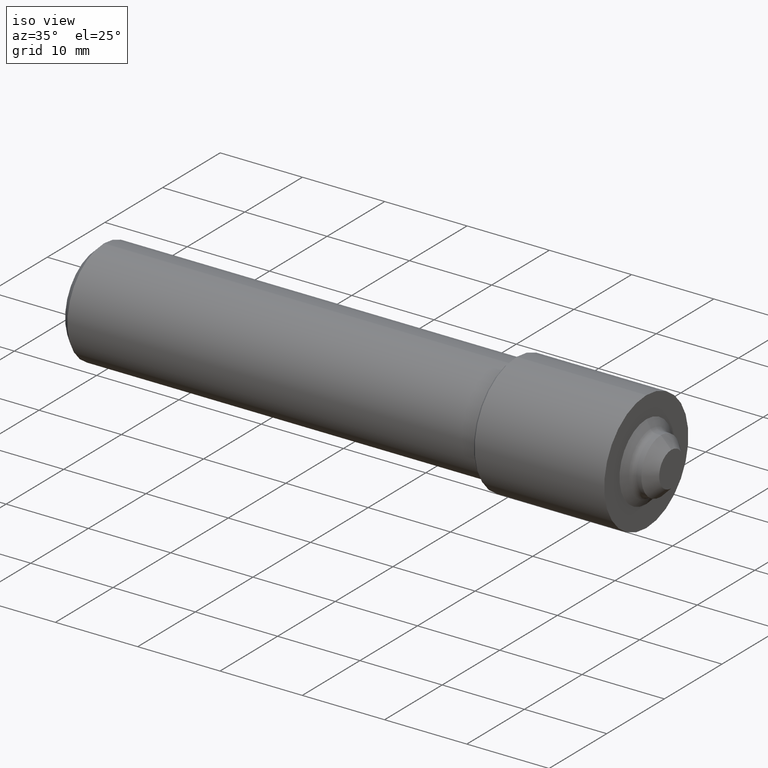
[diagram: clean part render]
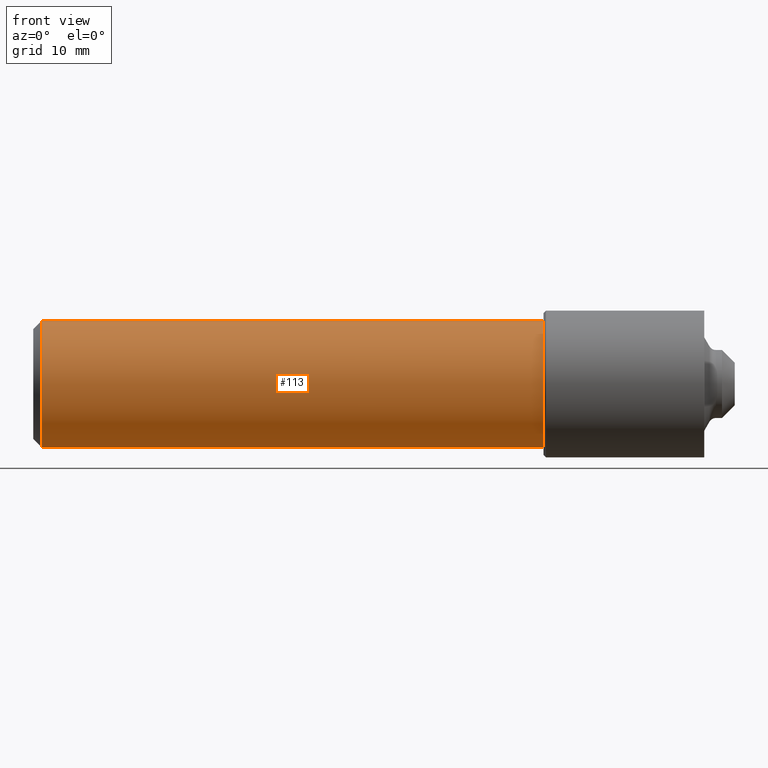
[diagram: tour spotlight — one face highlighted and labeled with its STEP entity id]
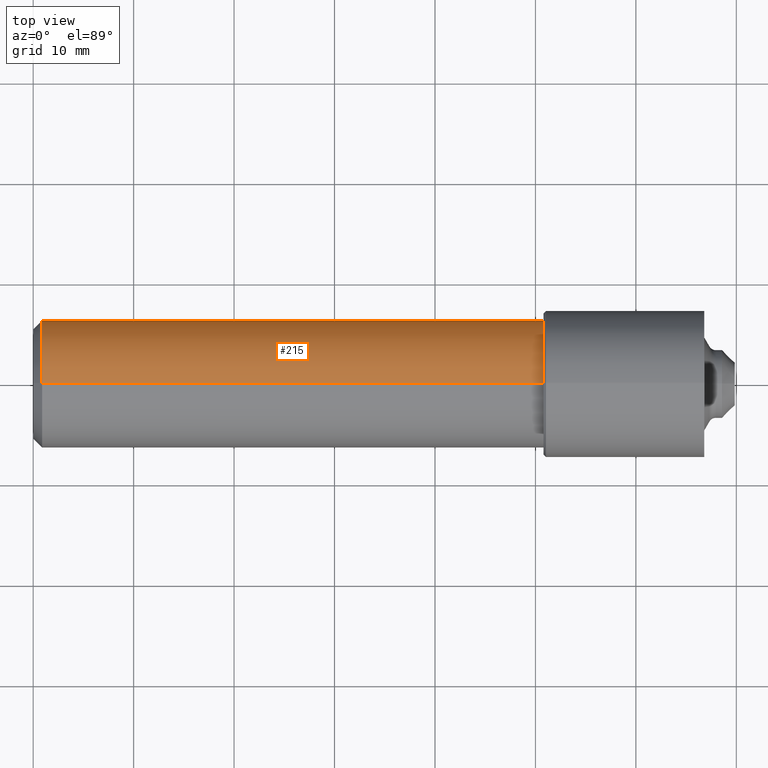
[diagram: tour spotlight — one face highlighted and labeled with its STEP entity id]
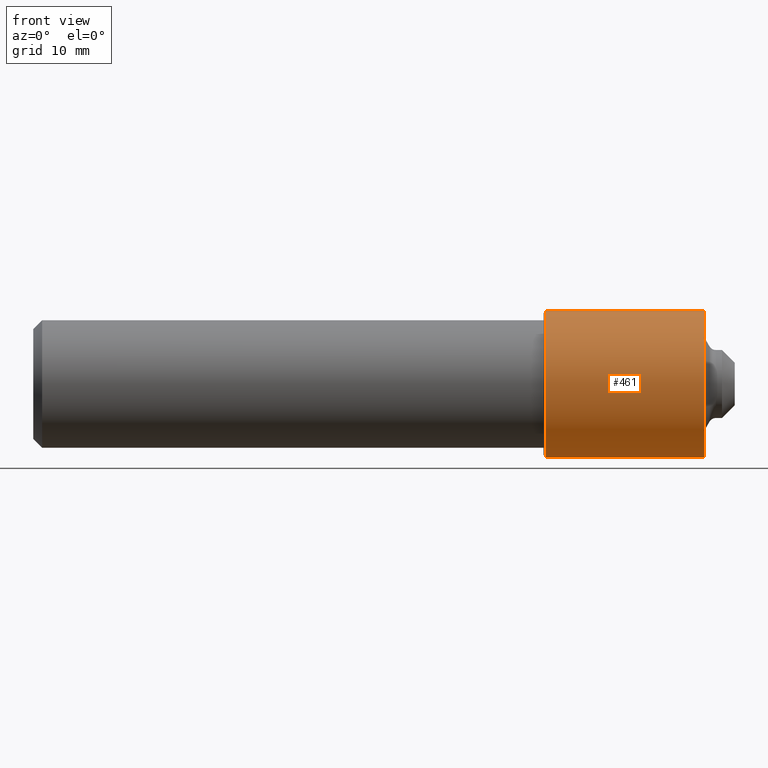
[diagram: tour spotlight — one face highlighted and labeled with its STEP entity id]
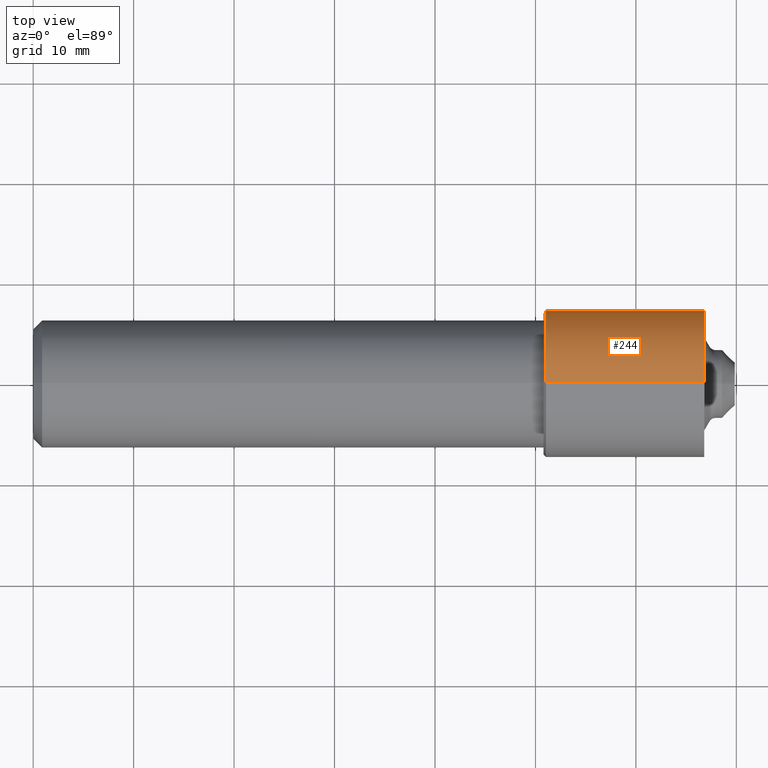
[diagram: tour spotlight — one face highlighted and labeled with its STEP entity id]
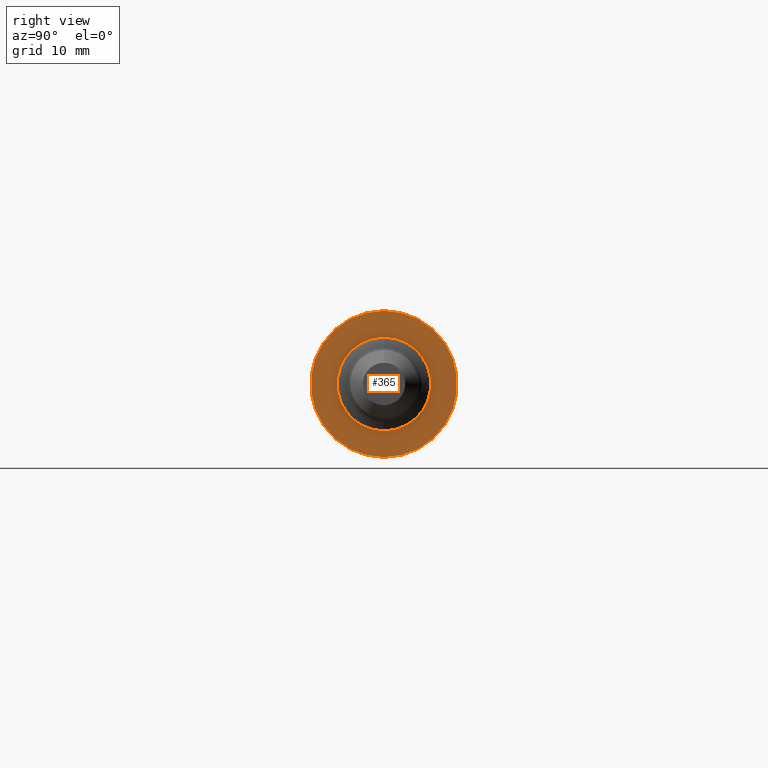
[diagram: tour spotlight — one face highlighted and labeled with its STEP entity id]
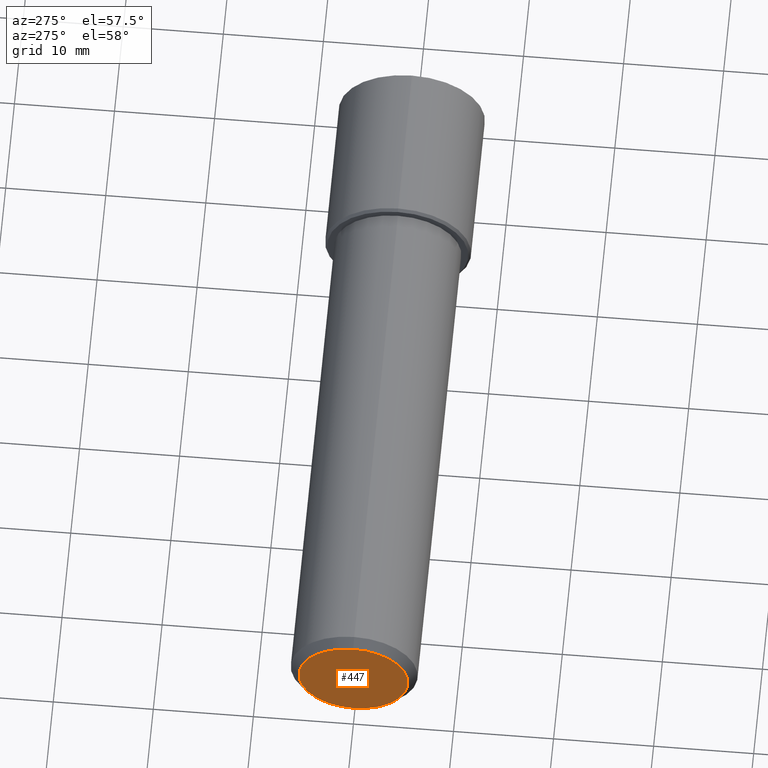
[diagram: tour spotlight — one face highlighted and labeled with its STEP entity id]
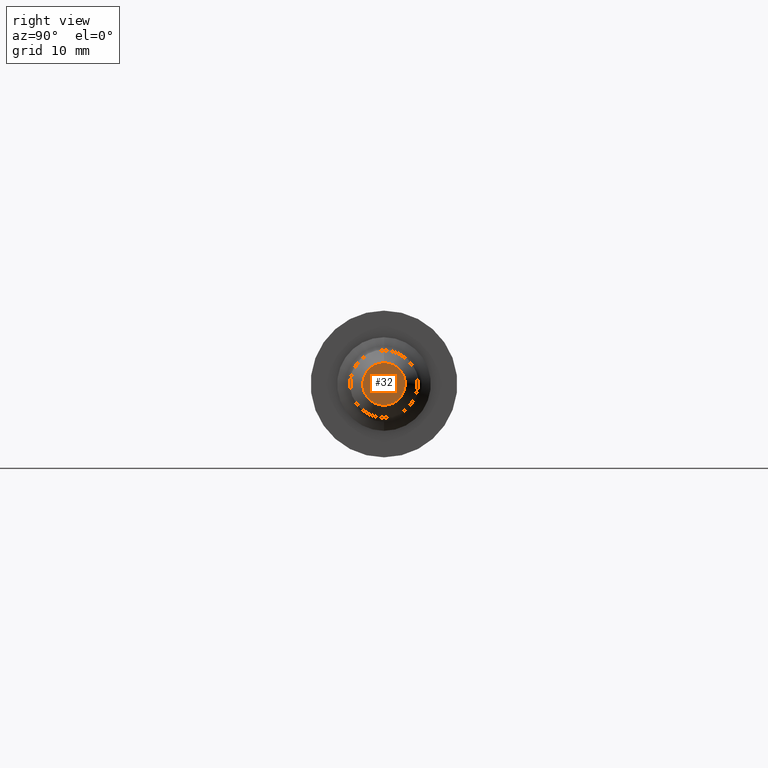
[diagram: tour spotlight — one face highlighted and labeled with its STEP entity id]
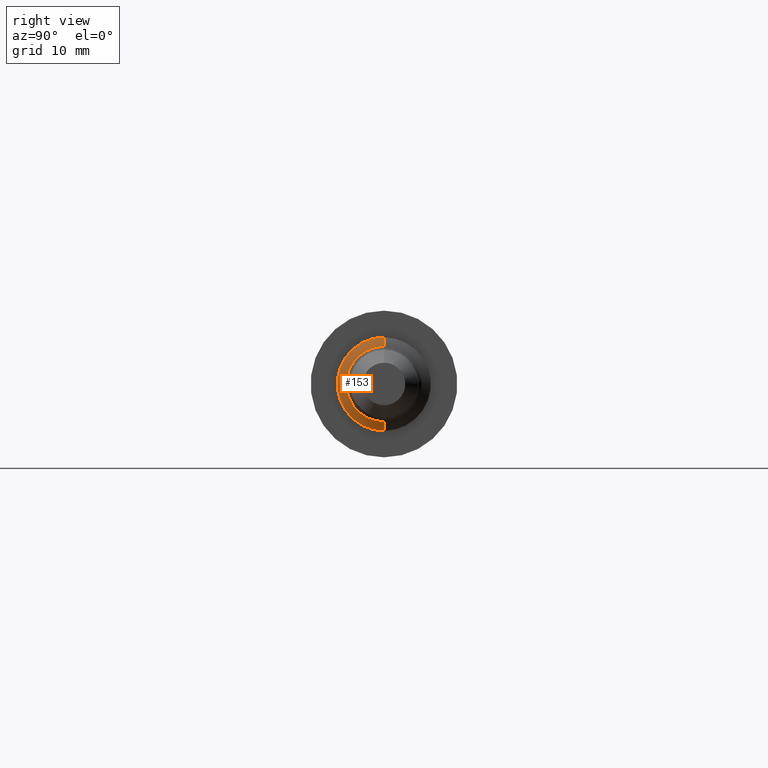
[diagram: tour spotlight — one face highlighted and labeled with its STEP entity id]
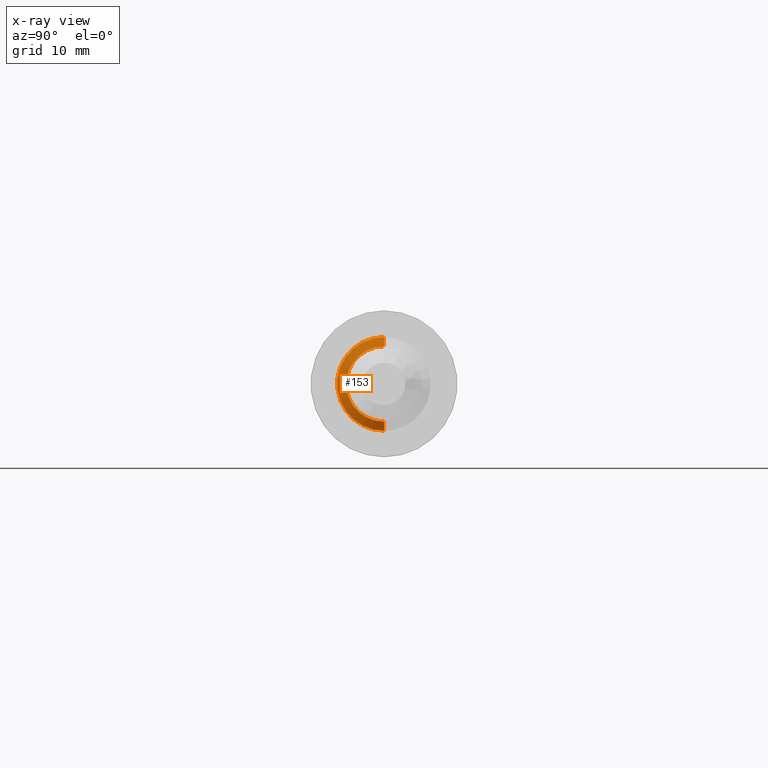
[diagram: x-ray of the same camera — body ghosted, this tour face saturated]
A machine part: a face-by-face anatomy tour. The part has 20 B-rep faces; the first image is the clean iso view, then the 8 largest visible faces are spotlighted one at a time (largest first), each with its STEP entity span.

Face 1 — front view, entity #113. In plain terms, the highlighted cylindrical surface (partial cylindrical patch) has radius 6.35 mm, axis along (-1, -0, -0).
Definition (entity closure, byte-faithful):
#1 = FACE_OUTER_BOUND ( 'NONE', #417, .T. ) ;
#21 = DIRECTION ( 'NONE',  ( -1.000000000000000000, -0.000000000000000000, -0.000000000000000000 ) ) ;
#24 = EDGE_CURVE ( 'NONE', #486, #97, #380, .T. ) ;
#33 = ORIENTED_EDGE ( 'NONE', *, *, #143, .T. ) ;
#40 = CARTESIAN_POINT ( 'NONE',  ( 2.000000000000000000, 3.061616997868383018E-17, -0.2500000000000000000 ) ) ;
#77 = CARTESIAN_POINT ( 'NONE',  ( 0.000000000000000000, 0.000000000000000000, 0.2500000000000000000 ) ) ;
#88 = AXIS2_PLACEMENT_3D ( 'NONE', #261, #21, #160 ) ;
#97 = VERTEX_POINT ( 'NONE', #164 ) ;
#113 = ADVANCED_FACE ( 'NONE', ( #1 ), #520, .T. ) ;
#119 = DIRECTION ( 'NONE',  ( -1.000000000000000000, -0.000000000000000000, -0.000000000000000000 ) ) ;
#134 = DIRECTION ( 'NONE',  ( -1.000000000000000000, -0.000000000000000000, -0.000000000000000000 ) ) ;
#142 = VERTEX_POINT ( 'NONE', #411 ) ;
#143 = EDGE_CURVE ( 'NONE', #142, #97, #504, .T. ) ;
#152 = DIRECTION ( 'NONE',  ( 0.000000000000000000, 0.000000000000000000, 1.000000000000000000 ) ) ;
#160 = DIRECTION ( 'NONE',  ( 0.000000000000000000, 0.000000000000000000, 1.000000000000000000 ) ) ;
#164 = CARTESIAN_POINT ( 'NONE',  ( 0.03500000000000000333, 0.000000000000000000, 0.2500000000000000000 ) ) ;
#167 = CARTESIAN_POINT ( 'NONE',  ( 0.000000000000000000, 0.000000000000000000, 0.000000000000000000 ) ) ;
#190 = ORIENTED_EDGE ( 'NONE', *, *, #24, .F. ) ;
#191 = EDGE_CURVE ( 'NONE', #347, #142, #326, .T. ) ;
#198 = VECTOR ( 'NONE', #119, 39.37007874015748143 ) ;
#230 = DIRECTION ( 'NONE',  ( -1.000000000000000000, -0.000000000000000000, -0.000000000000000000 ) ) ;
#261 = CARTESIAN_POINT ( 'NONE',  ( 2.000000000000000000, 0.000000000000000000, 0.000000000000000000 ) ) ;
#269 = VECTOR ( 'NONE', #230, 39.37007874015748143 ) ;
#274 = ORIENTED_EDGE ( 'NONE', *, *, #353, .F. ) ;
#308 = LINE ( 'NONE', #397, #269 ) ;
#326 = CIRCLE ( 'NONE', #88, 0.2500000000000000000 ) ;
#329 = DIRECTION ( 'NONE',  ( -1.000000000000000000, -0.000000000000000000, -0.000000000000000000 ) ) ;
#347 = VERTEX_POINT ( 'NONE', #40 ) ;
#353 = EDGE_CURVE ( 'NONE', #347, #486, #308, .T. ) ;
#364 = CARTESIAN_POINT ( 'NONE',  ( 0.03500000000000000333, 0.000000000000000000, 0.000000000000000000 ) ) ;
#380 = CIRCLE ( 'NONE', #522, 0.2500000000000000000 ) ;
#397 = CARTESIAN_POINT ( 'NONE',  ( 0.000000000000000000, 3.061616997868383018E-17, -0.2500000000000000000 ) ) ;
#411 = CARTESIAN_POINT ( 'NONE',  ( 2.000000000000000000, 0.000000000000000000, 0.2500000000000000000 ) ) ;
#417 = EDGE_LOOP ( 'NONE', ( #274, #548, #33, #190 ) ) ;
#428 = CARTESIAN_POINT ( 'NONE',  ( 0.03500000000000000333, 3.061616997868383018E-17, -0.2500000000000000000 ) ) ;
#486 = VERTEX_POINT ( 'NONE', #428 ) ;
#504 = LINE ( 'NONE', #77, #198 ) ;
#505 = DIRECTION ( 'NONE',  ( 0.000000000000000000, 0.000000000000000000, 1.000000000000000000 ) ) ;
#520 = CYLINDRICAL_SURFACE ( 'NONE', #538, 0.2500000000000000000 ) ;
#522 = AXIS2_PLACEMENT_3D ( 'NONE', #364, #329, #152 ) ;
#538 = AXIS2_PLACEMENT_3D ( 'NONE', #167, #134, #505 ) ;
#548 = ORIENTED_EDGE ( 'NONE', *, *, #191, .T. ) ;

Face 2 — top view, entity #215. In plain terms, the highlighted cylindrical surface (partial cylindrical patch) has radius 6.35 mm, axis along (-1, -0, -0).
Definition (entity closure, byte-faithful):
#40 = CARTESIAN_POINT ( 'NONE',  ( 2.000000000000000000, 3.061616997868383018E-17, -0.2500000000000000000 ) ) ;
#68 = FACE_OUTER_BOUND ( 'NONE', #354, .T. ) ;
#73 = AXIS2_PLACEMENT_3D ( 'NONE', #335, #466, #251 ) ;
#77 = CARTESIAN_POINT ( 'NONE',  ( 0.000000000000000000, 0.000000000000000000, 0.2500000000000000000 ) ) ;
#97 = VERTEX_POINT ( 'NONE', #164 ) ;
#119 = DIRECTION ( 'NONE',  ( -1.000000000000000000, -0.000000000000000000, -0.000000000000000000 ) ) ;
#142 = VERTEX_POINT ( 'NONE', #411 ) ;
#143 = EDGE_CURVE ( 'NONE', #142, #97, #504, .T. ) ;
#150 = ORIENTED_EDGE ( 'NONE', *, *, #316, .F. ) ;
#164 = CARTESIAN_POINT ( 'NONE',  ( 0.03500000000000000333, 0.000000000000000000, 0.2500000000000000000 ) ) ;
#198 = VECTOR ( 'NONE', #119, 39.37007874015748143 ) ;
#202 = ORIENTED_EDGE ( 'NONE', *, *, #353, .T. ) ;
#205 = AXIS2_PLACEMENT_3D ( 'NONE', #429, #267, #359 ) ;
#215 = ADVANCED_FACE ( 'NONE', ( #68 ), #286, .T. ) ;
#230 = DIRECTION ( 'NONE',  ( -1.000000000000000000, -0.000000000000000000, -0.000000000000000000 ) ) ;
#232 = AXIS2_PLACEMENT_3D ( 'NONE', #392, #488, #439 ) ;
#251 = DIRECTION ( 'NONE',  ( 0.000000000000000000, 0.000000000000000000, 1.000000000000000000 ) ) ;
#267 = DIRECTION ( 'NONE',  ( -1.000000000000000000, -0.000000000000000000, -0.000000000000000000 ) ) ;
#269 = VECTOR ( 'NONE', #230, 39.37007874015748143 ) ;
#286 = CYLINDRICAL_SURFACE ( 'NONE', #73, 0.2500000000000000000 ) ;
#308 = LINE ( 'NONE', #397, #269 ) ;
#316 = EDGE_CURVE ( 'NONE', #97, #486, #382, .T. ) ;
#318 = ORIENTED_EDGE ( 'NONE', *, *, #338, .T. ) ;
#335 = CARTESIAN_POINT ( 'NONE',  ( 0.000000000000000000, 0.000000000000000000, 0.000000000000000000 ) ) ;
#338 = EDGE_CURVE ( 'NONE', #142, #347, #508, .T. ) ;
#347 = VERTEX_POINT ( 'NONE', #40 ) ;
#353 = EDGE_CURVE ( 'NONE', #347, #486, #308, .T. ) ;
#354 = EDGE_LOOP ( 'NONE', ( #318, #202, #150, #413 ) ) ;
#359 = DIRECTION ( 'NONE',  ( 0.000000000000000000, 0.000000000000000000, 1.000000000000000000 ) ) ;
#382 = CIRCLE ( 'NONE', #205, 0.2500000000000000000 ) ;
#392 = CARTESIAN_POINT ( 'NONE',  ( 2.000000000000000000, 0.000000000000000000, 0.000000000000000000 ) ) ;
#397 = CARTESIAN_POINT ( 'NONE',  ( 0.000000000000000000, 3.061616997868383018E-17, -0.2500000000000000000 ) ) ;
#411 = CARTESIAN_POINT ( 'NONE',  ( 2.000000000000000000, 0.000000000000000000, 0.2500000000000000000 ) ) ;
#413 = ORIENTED_EDGE ( 'NONE', *, *, #143, .F. ) ;
#428 = CARTESIAN_POINT ( 'NONE',  ( 0.03500000000000000333, 3.061616997868383018E-17, -0.2500000000000000000 ) ) ;
#429 = CARTESIAN_POINT ( 'NONE',  ( 0.03500000000000000333, 0.000000000000000000, 0.000000000000000000 ) ) ;
#439 = DIRECTION ( 'NONE',  ( 0.000000000000000000, 0.000000000000000000, 1.000000000000000000 ) ) ;
#466 = DIRECTION ( 'NONE',  ( -1.000000000000000000, -0.000000000000000000, -0.000000000000000000 ) ) ;
#486 = VERTEX_POINT ( 'NONE', #428 ) ;
#488 = DIRECTION ( 'NONE',  ( -1.000000000000000000, -0.000000000000000000, -0.000000000000000000 ) ) ;
#504 = LINE ( 'NONE', #77, #198 ) ;
#508 = CIRCLE ( 'NONE', #232, 0.2500000000000000000 ) ;

Face 3 — front view, entity #461. In plain terms, the highlighted cylindrical surface (partial cylindrical patch) has radius 7.3025 mm, axis along (-1, -0, -0).
Definition (entity closure, byte-faithful):
#3 = CARTESIAN_POINT ( 'NONE',  ( 0.000000000000000000, 0.000000000000000000, 0.000000000000000000 ) ) ;
#14 = CIRCLE ( 'NONE', #289, 0.2874999999999999778 ) ;
#28 = CARTESIAN_POINT ( 'NONE',  ( 2.629999999999999893, 0.000000000000000000, 0.000000000000000000 ) ) ;
#44 = DIRECTION ( 'NONE',  ( -1.000000000000000000, -0.000000000000000000, -0.000000000000000000 ) ) ;
#60 = VERTEX_POINT ( 'NONE', #543 ) ;
#80 = VERTEX_POINT ( 'NONE', #83 ) ;
#82 = CARTESIAN_POINT ( 'NONE',  ( 2.009999999999999787, 3.520859547548640070E-17, -0.2874999999999999778 ) ) ;
#83 = CARTESIAN_POINT ( 'NONE',  ( 2.009999999999999787, 0.000000000000000000, 0.2874999999999999778 ) ) ;
#89 = VECTOR ( 'NONE', #44, 39.37007874015748143 ) ;
#117 = ORIENTED_EDGE ( 'NONE', *, *, #278, .F. ) ;
#125 = DIRECTION ( 'NONE',  ( 0.000000000000000000, 0.000000000000000000, 1.000000000000000000 ) ) ;
#136 = VERTEX_POINT ( 'NONE', #82 ) ;
#148 = AXIS2_PLACEMENT_3D ( 'NONE', #3, #373, #125 ) ;
#180 = EDGE_CURVE ( 'NONE', #60, #433, #492, .T. ) ;
#196 = ORIENTED_EDGE ( 'NONE', *, *, #328, .F. ) ;
#210 = DIRECTION ( 'NONE',  ( 0.000000000000000000, 0.000000000000000000, 1.000000000000000000 ) ) ;
#226 = DIRECTION ( 'NONE',  ( -1.000000000000000000, -0.000000000000000000, -0.000000000000000000 ) ) ;
#233 = EDGE_LOOP ( 'NONE', ( #117, #266, #438, #196 ) ) ;
#237 = DIRECTION ( 'NONE',  ( 0.000000000000000000, 0.000000000000000000, 1.000000000000000000 ) ) ;
#250 = AXIS2_PLACEMENT_3D ( 'NONE', #28, #513, #210 ) ;
#266 = ORIENTED_EDGE ( 'NONE', *, *, #180, .T. ) ;
#278 = EDGE_CURVE ( 'NONE', #60, #136, #542, .T. ) ;
#289 = AXIS2_PLACEMENT_3D ( 'NONE', #311, #226, #237 ) ;
#293 = DIRECTION ( 'NONE',  ( -1.000000000000000000, -0.000000000000000000, -0.000000000000000000 ) ) ;
#296 = CARTESIAN_POINT ( 'NONE',  ( 2.629999999999999893, 0.000000000000000000, 0.2874999999999999778 ) ) ;
#311 = CARTESIAN_POINT ( 'NONE',  ( 2.009999999999999787, 0.000000000000000000, 0.000000000000000000 ) ) ;
#328 = EDGE_CURVE ( 'NONE', #136, #80, #14, .T. ) ;
#334 = CARTESIAN_POINT ( 'NONE',  ( 0.000000000000000000, 0.000000000000000000, 0.2874999999999999778 ) ) ;
#343 = FACE_OUTER_BOUND ( 'NONE', #233, .T. ) ;
#373 = DIRECTION ( 'NONE',  ( -1.000000000000000000, -0.000000000000000000, -0.000000000000000000 ) ) ;
#388 = CYLINDRICAL_SURFACE ( 'NONE', #148, 0.2874999999999999778 ) ;
#431 = CARTESIAN_POINT ( 'NONE',  ( 0.000000000000000000, 3.520859547548640070E-17, -0.2874999999999999778 ) ) ;
#433 = VERTEX_POINT ( 'NONE', #296 ) ;
#437 = VECTOR ( 'NONE', #293, 39.37007874015748143 ) ;
#438 = ORIENTED_EDGE ( 'NONE', *, *, #479, .T. ) ;
#461 = ADVANCED_FACE ( 'NONE', ( #343 ), #388, .T. ) ;
#467 = LINE ( 'NONE', #334, #437 ) ;
#479 = EDGE_CURVE ( 'NONE', #433, #80, #467, .T. ) ;
#492 = CIRCLE ( 'NONE', #250, 0.2874999999999999778 ) ;
#513 = DIRECTION ( 'NONE',  ( -1.000000000000000000, -0.000000000000000000, -0.000000000000000000 ) ) ;
#542 = LINE ( 'NONE', #431, #89 ) ;
#543 = CARTESIAN_POINT ( 'NONE',  ( 2.629999999999999893, 3.520859547548640070E-17, -0.2874999999999999778 ) ) ;

Face 4 — top view, entity #244. In plain terms, the highlighted cylindrical surface (partial cylindrical patch) has radius 7.3025 mm, axis along (-1, -0, -0).
Definition (entity closure, byte-faithful):
#25 = DIRECTION ( 'NONE',  ( 0.000000000000000000, 0.000000000000000000, 1.000000000000000000 ) ) ;
#44 = DIRECTION ( 'NONE',  ( -1.000000000000000000, -0.000000000000000000, -0.000000000000000000 ) ) ;
#60 = VERTEX_POINT ( 'NONE', #543 ) ;
#80 = VERTEX_POINT ( 'NONE', #83 ) ;
#82 = CARTESIAN_POINT ( 'NONE',  ( 2.009999999999999787, 3.520859547548640070E-17, -0.2874999999999999778 ) ) ;
#83 = CARTESIAN_POINT ( 'NONE',  ( 2.009999999999999787, 0.000000000000000000, 0.2874999999999999778 ) ) ;
#89 = VECTOR ( 'NONE', #44, 39.37007874015748143 ) ;
#132 = DIRECTION ( 'NONE',  ( -1.000000000000000000, -0.000000000000000000, -0.000000000000000000 ) ) ;
#136 = VERTEX_POINT ( 'NONE', #82 ) ;
#159 = ORIENTED_EDGE ( 'NONE', *, *, #479, .F. ) ;
#218 = CARTESIAN_POINT ( 'NONE',  ( 2.629999999999999893, 0.000000000000000000, 0.000000000000000000 ) ) ;
#244 = ADVANCED_FACE ( 'NONE', ( #330 ), #374, .T. ) ;
#258 = DIRECTION ( 'NONE',  ( -1.000000000000000000, -0.000000000000000000, -0.000000000000000000 ) ) ;
#259 = EDGE_CURVE ( 'NONE', #433, #60, #498, .T. ) ;
#278 = EDGE_CURVE ( 'NONE', #60, #136, #542, .T. ) ;
#293 = DIRECTION ( 'NONE',  ( -1.000000000000000000, -0.000000000000000000, -0.000000000000000000 ) ) ;
#296 = CARTESIAN_POINT ( 'NONE',  ( 2.629999999999999893, 0.000000000000000000, 0.2874999999999999778 ) ) ;
#300 = DIRECTION ( 'NONE',  ( 0.000000000000000000, 0.000000000000000000, 1.000000000000000000 ) ) ;
#324 = EDGE_LOOP ( 'NONE', ( #490, #336, #376, #159 ) ) ;
#330 = FACE_OUTER_BOUND ( 'NONE', #324, .T. ) ;
#334 = CARTESIAN_POINT ( 'NONE',  ( 0.000000000000000000, 0.000000000000000000, 0.2874999999999999778 ) ) ;
#336 = ORIENTED_EDGE ( 'NONE', *, *, #278, .T. ) ;
#341 = DIRECTION ( 'NONE',  ( 0.000000000000000000, 0.000000000000000000, 1.000000000000000000 ) ) ;
#352 = AXIS2_PLACEMENT_3D ( 'NONE', #463, #258, #25 ) ;
#374 = CYLINDRICAL_SURFACE ( 'NONE', #352, 0.2874999999999999778 ) ;
#376 = ORIENTED_EDGE ( 'NONE', *, *, #541, .F. ) ;
#378 = DIRECTION ( 'NONE',  ( -1.000000000000000000, -0.000000000000000000, -0.000000000000000000 ) ) ;
#431 = CARTESIAN_POINT ( 'NONE',  ( 0.000000000000000000, 3.520859547548640070E-17, -0.2874999999999999778 ) ) ;
#433 = VERTEX_POINT ( 'NONE', #296 ) ;
#435 = AXIS2_PLACEMENT_3D ( 'NONE', #218, #378, #341 ) ;
#437 = VECTOR ( 'NONE', #293, 39.37007874015748143 ) ;
#463 = CARTESIAN_POINT ( 'NONE',  ( 0.000000000000000000, 0.000000000000000000, 0.000000000000000000 ) ) ;
#467 = LINE ( 'NONE', #334, #437 ) ;
#479 = EDGE_CURVE ( 'NONE', #433, #80, #467, .T. ) ;
#490 = ORIENTED_EDGE ( 'NONE', *, *, #259, .T. ) ;
#498 = CIRCLE ( 'NONE', #435, 0.2874999999999999778 ) ;
#509 = AXIS2_PLACEMENT_3D ( 'NONE', #518, #132, #300 ) ;
#518 = CARTESIAN_POINT ( 'NONE',  ( 2.009999999999999787, 0.000000000000000000, 0.000000000000000000 ) ) ;
#539 = CIRCLE ( 'NONE', #509, 0.2874999999999999778 ) ;
#541 = EDGE_CURVE ( 'NONE', #80, #136, #539, .T. ) ;
#542 = LINE ( 'NONE', #431, #89 ) ;
#543 = CARTESIAN_POINT ( 'NONE',  ( 2.629999999999999893, 3.520859547548640070E-17, -0.2874999999999999778 ) ) ;

Face 5 — right view, entity #365. In plain terms, the highlighted planar face has unit normal (-1, 0, -0).
Definition (entity closure, byte-faithful):
#6 = AXIS2_PLACEMENT_3D ( 'NONE', #189, #525, #43 ) ;
#20 = VERTEX_POINT ( 'NONE', #494 ) ;
#28 = CARTESIAN_POINT ( 'NONE',  ( 2.629999999999999893, 0.000000000000000000, 0.000000000000000000 ) ) ;
#43 = DIRECTION ( 'NONE',  ( -0.000000000000000000, 0.000000000000000000, 1.000000000000000000 ) ) ;
#45 = EDGE_CURVE ( 'NONE', #20, #242, #319, .T. ) ;
#60 = VERTEX_POINT ( 'NONE', #543 ) ;
#70 = AXIS2_PLACEMENT_3D ( 'NONE', #243, #370, #500 ) ;
#74 = ORIENTED_EDGE ( 'NONE', *, *, #407, .T. ) ;
#103 = FACE_BOUND ( 'NONE', #303, .T. ) ;
#145 = EDGE_LOOP ( 'NONE', ( #478, #358 ) ) ;
#166 = CARTESIAN_POINT ( 'NONE',  ( 2.629999999999999893, 2.247226876435393398E-17, -0.1834999999999999964 ) ) ;
#180 = EDGE_CURVE ( 'NONE', #60, #433, #492, .T. ) ;
#189 = CARTESIAN_POINT ( 'NONE',  ( 2.629999999999999893, 0.2874999999999999778, 0.000000000000000000 ) ) ;
#210 = DIRECTION ( 'NONE',  ( 0.000000000000000000, 0.000000000000000000, 1.000000000000000000 ) ) ;
#218 = CARTESIAN_POINT ( 'NONE',  ( 2.629999999999999893, 0.000000000000000000, 0.000000000000000000 ) ) ;
#235 = FACE_OUTER_BOUND ( 'NONE', #145, .T. ) ;
#242 = VERTEX_POINT ( 'NONE', #166 ) ;
#243 = CARTESIAN_POINT ( 'NONE',  ( 2.629999999999999893, 0.000000000000000000, 0.000000000000000000 ) ) ;
#250 = AXIS2_PLACEMENT_3D ( 'NONE', #28, #513, #210 ) ;
#259 = EDGE_CURVE ( 'NONE', #433, #60, #498, .T. ) ;
#264 = CARTESIAN_POINT ( 'NONE',  ( 2.629999999999999893, 0.000000000000000000, 0.000000000000000000 ) ) ;
#281 = CIRCLE ( 'NONE', #327, 0.1834999999999999964 ) ;
#296 = CARTESIAN_POINT ( 'NONE',  ( 2.629999999999999893, 0.000000000000000000, 0.2874999999999999778 ) ) ;
#303 = EDGE_LOOP ( 'NONE', ( #526, #74 ) ) ;
#305 = DIRECTION ( 'NONE',  ( -1.000000000000000000, -0.000000000000000000, -0.000000000000000000 ) ) ;
#319 = CIRCLE ( 'NONE', #70, 0.1834999999999999964 ) ;
#327 = AXIS2_PLACEMENT_3D ( 'NONE', #264, #305, #477 ) ;
#341 = DIRECTION ( 'NONE',  ( 0.000000000000000000, 0.000000000000000000, 1.000000000000000000 ) ) ;
#358 = ORIENTED_EDGE ( 'NONE', *, *, #180, .F. ) ;
#365 = ADVANCED_FACE ( 'NONE', ( #235, #103 ), #426, .F. ) ;
#370 = DIRECTION ( 'NONE',  ( -1.000000000000000000, -0.000000000000000000, -0.000000000000000000 ) ) ;
#378 = DIRECTION ( 'NONE',  ( -1.000000000000000000, -0.000000000000000000, -0.000000000000000000 ) ) ;
#407 = EDGE_CURVE ( 'NONE', #242, #20, #281, .T. ) ;
#426 = PLANE ( 'NONE',  #6 ) ;
#433 = VERTEX_POINT ( 'NONE', #296 ) ;
#435 = AXIS2_PLACEMENT_3D ( 'NONE', #218, #378, #341 ) ;
#477 = DIRECTION ( 'NONE',  ( 0.000000000000000000, 0.000000000000000000, 1.000000000000000000 ) ) ;
#478 = ORIENTED_EDGE ( 'NONE', *, *, #259, .F. ) ;
#492 = CIRCLE ( 'NONE', #250, 0.2874999999999999778 ) ;
#494 = CARTESIAN_POINT ( 'NONE',  ( 2.629999999999999893, 0.000000000000000000, 0.1834999999999999964 ) ) ;
#498 = CIRCLE ( 'NONE', #435, 0.2874999999999999778 ) ;
#500 = DIRECTION ( 'NONE',  ( 0.000000000000000000, 0.000000000000000000, 1.000000000000000000 ) ) ;
#513 = DIRECTION ( 'NONE',  ( -1.000000000000000000, -0.000000000000000000, -0.000000000000000000 ) ) ;
#525 = DIRECTION ( 'NONE',  ( -1.000000000000000000, 0.000000000000000000, -0.000000000000000000 ) ) ;
#526 = ORIENTED_EDGE ( 'NONE', *, *, #45, .T. ) ;
#543 = CARTESIAN_POINT ( 'NONE',  ( 2.629999999999999893, 3.520859547548640070E-17, -0.2874999999999999778 ) ) ;

Face 6 — auxiliary view, entity #447. In plain terms, the highlighted planar face has unit normal (1, 0, 0).
Definition (entity closure, byte-faithful):
#7 = CARTESIAN_POINT ( 'NONE',  ( 0.000000000000000000, 2.847303808017596681E-17, 0.2150000000000001354 ) ) ;
#36 = CIRCLE ( 'NONE', #48, 0.2150000000000001354 ) ;
#42 = CARTESIAN_POINT ( 'NONE',  ( 0.000000000000000000, 0.000000000000000000, 0.000000000000000000 ) ) ;
#48 = AXIS2_PLACEMENT_3D ( 'NONE', #332, #420, #71 ) ;
#71 = DIRECTION ( 'NONE',  ( 0.000000000000000000, 0.000000000000000000, 1.000000000000000000 ) ) ;
#93 = EDGE_CURVE ( 'NONE', #238, #342, #36, .T. ) ;
#99 = AXIS2_PLACEMENT_3D ( 'NONE', #462, #556, #174 ) ;
#123 = CIRCLE ( 'NONE', #99, 0.2150000000000001354 ) ;
#174 = DIRECTION ( 'NONE',  ( 0.000000000000000000, 0.000000000000000000, 1.000000000000000000 ) ) ;
#214 = DIRECTION ( 'NONE',  ( 0.000000000000000000, 0.000000000000000000, -1.000000000000000000 ) ) ;
#229 = DIRECTION ( 'NONE',  ( 1.000000000000000000, 0.000000000000000000, 0.000000000000000000 ) ) ;
#238 = VERTEX_POINT ( 'NONE', #383 ) ;
#287 = EDGE_LOOP ( 'NONE', ( #481, #362 ) ) ;
#332 = CARTESIAN_POINT ( 'NONE',  ( 0.000000000000000000, 0.000000000000000000, 0.000000000000000000 ) ) ;
#342 = VERTEX_POINT ( 'NONE', #7 ) ;
#362 = ORIENTED_EDGE ( 'NONE', *, *, #529, .T. ) ;
#377 = FACE_OUTER_BOUND ( 'NONE', #287, .T. ) ;
#383 = CARTESIAN_POINT ( 'NONE',  ( 0.000000000000000000, 0.000000000000000000, -0.2150000000000001354 ) ) ;
#420 = DIRECTION ( 'NONE',  ( -1.000000000000000000, -0.000000000000000000, -0.000000000000000000 ) ) ;
#445 = AXIS2_PLACEMENT_3D ( 'NONE', #42, #229, #214 ) ;
#447 = ADVANCED_FACE ( 'NONE', ( #377 ), #472, .F. ) ;
#462 = CARTESIAN_POINT ( 'NONE',  ( 0.000000000000000000, 0.000000000000000000, 0.000000000000000000 ) ) ;
#472 = PLANE ( 'NONE',  #445 ) ;
#481 = ORIENTED_EDGE ( 'NONE', *, *, #93, .T. ) ;
#529 = EDGE_CURVE ( 'NONE', #342, #238, #123, .T. ) ;
#556 = DIRECTION ( 'NONE',  ( -1.000000000000000000, -0.000000000000000000, -0.000000000000000000 ) ) ;

Face 7 — right view, entity #32. In plain terms, the highlighted planar face has unit normal (-1, 0, -0).
Definition (entity closure, byte-faithful):
#27 = FACE_OUTER_BOUND ( 'NONE', #430, .T. ) ;
#32 = ADVANCED_FACE ( 'NONE', ( #27 ), #367, .F. ) ;
#49 = AXIS2_PLACEMENT_3D ( 'NONE', #557, #455, #175 ) ;
#111 = CARTESIAN_POINT ( 'NONE',  ( 2.750000000000000000, 0.08325000000000011557, 0.000000000000000000 ) ) ;
#122 = CIRCLE ( 'NONE', #460, 0.08325000000000011557 ) ;
#131 = ORIENTED_EDGE ( 'NONE', *, *, #208, .F. ) ;
#158 = ORIENTED_EDGE ( 'NONE', *, *, #248, .F. ) ;
#175 = DIRECTION ( 'NONE',  ( 0.000000000000000000, 0.000000000000000000, 1.000000000000000000 ) ) ;
#187 = VERTEX_POINT ( 'NONE', #369 ) ;
#208 = EDGE_CURVE ( 'NONE', #187, #442, #340, .T. ) ;
#212 = AXIS2_PLACEMENT_3D ( 'NONE', #111, #279, #448 ) ;
#248 = EDGE_CURVE ( 'NONE', #442, #187, #122, .T. ) ;
#279 = DIRECTION ( 'NONE',  ( -1.000000000000000000, 0.000000000000000000, -0.000000000000000000 ) ) ;
#290 = DIRECTION ( 'NONE',  ( 0.000000000000000000, 0.000000000000000000, 1.000000000000000000 ) ) ;
#340 = CIRCLE ( 'NONE', #49, 0.08325000000000011557 ) ;
#367 = PLANE ( 'NONE',  #212 ) ;
#369 = CARTESIAN_POINT ( 'NONE',  ( 2.750000000000000000, 1.325680160077010609E-17, -0.08325000000000011557 ) ) ;
#372 = DIRECTION ( 'NONE',  ( -1.000000000000000000, -0.000000000000000000, -0.000000000000000000 ) ) ;
#430 = EDGE_LOOP ( 'NONE', ( #158, #131 ) ) ;
#442 = VERTEX_POINT ( 'NONE', #510 ) ;
#448 = DIRECTION ( 'NONE',  ( -0.000000000000000000, 0.000000000000000000, 1.000000000000000000 ) ) ;
#455 = DIRECTION ( 'NONE',  ( -1.000000000000000000, -0.000000000000000000, -0.000000000000000000 ) ) ;
#460 = AXIS2_PLACEMENT_3D ( 'NONE', #501, #372, #290 ) ;
#501 = CARTESIAN_POINT ( 'NONE',  ( 2.750000000000000000, 0.000000000000000000, 0.000000000000000000 ) ) ;
#510 = CARTESIAN_POINT ( 'NONE',  ( 2.750000000000000000, 0.000000000000000000, 0.08325000000000011557 ) ) ;
#557 = CARTESIAN_POINT ( 'NONE',  ( 2.750000000000000000, 0.000000000000000000, 0.000000000000000000 ) ) ;

Face 8 — right view, entity #153. An x-ray twin of the same camera follows (body ghosted, this face saturated) — the face is partly hidden behind the body. In plain terms, the highlighted conical surface has half-angle 60 deg.
Definition (entity closure, byte-faithful):
#10 = EDGE_LOOP ( 'NONE', ( #200, #220, #395, #379 ) ) ;
#20 = VERTEX_POINT ( 'NONE', #494 ) ;
#35 = DIRECTION ( 'NONE',  ( -1.000000000000000000, -0.000000000000000000, -0.000000000000000000 ) ) ;
#54 = DIRECTION ( 'NONE',  ( -0.4999999999999977240, 1.060575238724908517E-16, -0.8660254037844398178 ) ) ;
#91 = CARTESIAN_POINT ( 'NONE',  ( 2.650640272123529151, 0.000000000000000000, 0.1477500000000001590 ) ) ;
#94 = CARTESIAN_POINT ( 'NONE',  ( 2.650640272123529151, 1.809415645740216520E-17, -0.1477500000000001590 ) ) ;
#129 = CARTESIAN_POINT ( 'NONE',  ( 2.650640272123529151, 0.000000000000000000, 0.000000000000000000 ) ) ;
#137 = AXIS2_PLACEMENT_3D ( 'NONE', #217, #414, #385 ) ;
#139 = LINE ( 'NONE', #91, #161 ) ;
#153 = ADVANCED_FACE ( 'NONE', ( #254 ), #551, .T. ) ;
#161 = VECTOR ( 'NONE', #474, 39.37007874015748143 ) ;
#166 = CARTESIAN_POINT ( 'NONE',  ( 2.629999999999999893, 2.247226876435393398E-17, -0.1834999999999999964 ) ) ;
#170 = CARTESIAN_POINT ( 'NONE',  ( 2.650640272123529151, 1.809415645740214979E-17, -0.1477500000000000757 ) ) ;
#181 = VERTEX_POINT ( 'NONE', #170 ) ;
#186 = AXIS2_PLACEMENT_3D ( 'NONE', #129, #35, #547 ) ;
#199 = CIRCLE ( 'NONE', #137, 0.1477500000000001590 ) ;
#200 = ORIENTED_EDGE ( 'NONE', *, *, #375, .F. ) ;
#217 = CARTESIAN_POINT ( 'NONE',  ( 2.650640272123529151, 0.000000000000000000, 0.000000000000000000 ) ) ;
#220 = ORIENTED_EDGE ( 'NONE', *, *, #436, .T. ) ;
#242 = VERTEX_POINT ( 'NONE', #166 ) ;
#254 = FACE_OUTER_BOUND ( 'NONE', #10, .T. ) ;
#260 = VERTEX_POINT ( 'NONE', #344 ) ;
#264 = CARTESIAN_POINT ( 'NONE',  ( 2.629999999999999893, 0.000000000000000000, 0.000000000000000000 ) ) ;
#281 = CIRCLE ( 'NONE', #327, 0.1834999999999999964 ) ;
#305 = DIRECTION ( 'NONE',  ( -1.000000000000000000, -0.000000000000000000, -0.000000000000000000 ) ) ;
#327 = AXIS2_PLACEMENT_3D ( 'NONE', #264, #305, #477 ) ;
#344 = CARTESIAN_POINT ( 'NONE',  ( 2.650640272123529151, 0.000000000000000000, 0.1477500000000000757 ) ) ;
#375 = EDGE_CURVE ( 'NONE', #181, #242, #561, .T. ) ;
#379 = ORIENTED_EDGE ( 'NONE', *, *, #407, .F. ) ;
#385 = DIRECTION ( 'NONE',  ( 0.000000000000000000, 0.000000000000000000, 1.000000000000000000 ) ) ;
#395 = ORIENTED_EDGE ( 'NONE', *, *, #402, .T. ) ;
#402 = EDGE_CURVE ( 'NONE', #260, #20, #139, .T. ) ;
#407 = EDGE_CURVE ( 'NONE', #242, #20, #281, .T. ) ;
#414 = DIRECTION ( 'NONE',  ( -1.000000000000000000, -0.000000000000000000, -0.000000000000000000 ) ) ;
#436 = EDGE_CURVE ( 'NONE', #181, #260, #199, .T. ) ;
#473 = VECTOR ( 'NONE', #54, 39.37007874015748143 ) ;
#474 = DIRECTION ( 'NONE',  ( -0.4999999999999977240, 0.000000000000000000, 0.8660254037844398178 ) ) ;
#477 = DIRECTION ( 'NONE',  ( 0.000000000000000000, 0.000000000000000000, 1.000000000000000000 ) ) ;
#494 = CARTESIAN_POINT ( 'NONE',  ( 2.629999999999999893, 0.000000000000000000, 0.1834999999999999964 ) ) ;
#547 = DIRECTION ( 'NONE',  ( 0.000000000000000000, 0.000000000000000000, 1.000000000000000000 ) ) ;
#551 = CONICAL_SURFACE ( 'NONE', #186, 0.1477500000000001590, 1.047197551196600296 ) ;
#561 = LINE ( 'NONE', #94, #473 ) ;